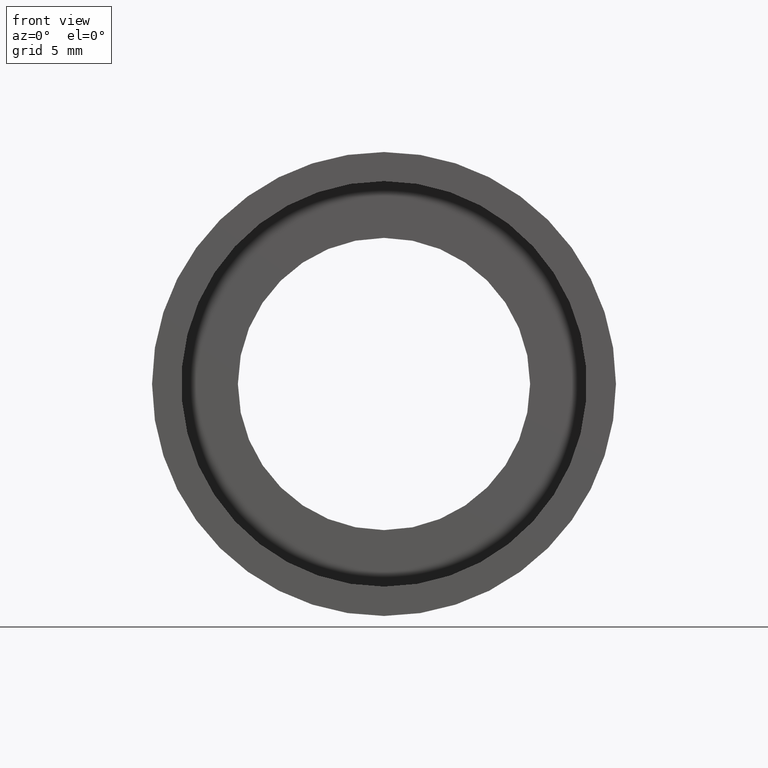
[diagram: clean part render]
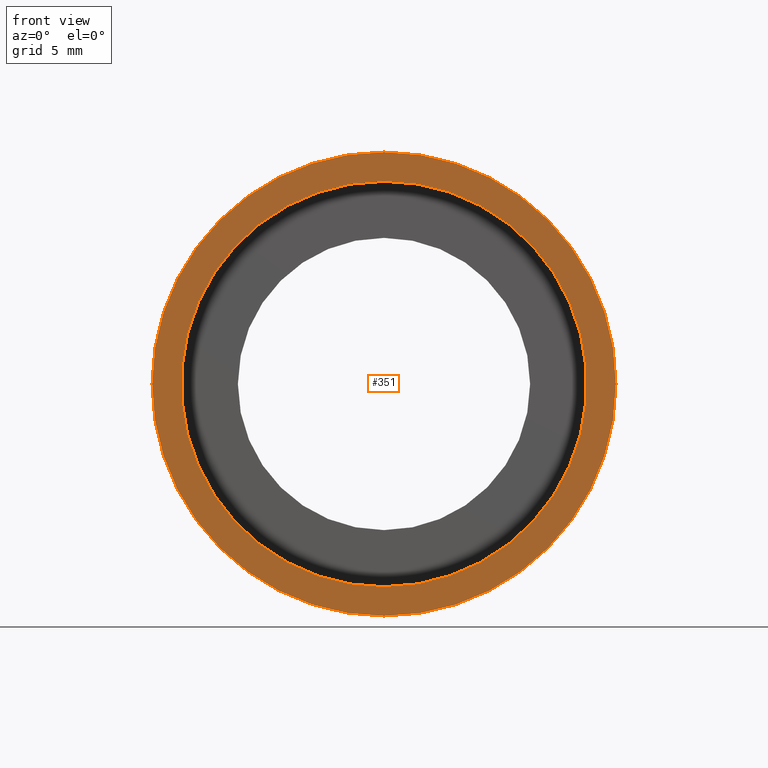
[diagram: same view with one face highlighted and labeled with its STEP entity id]
A machine part, front view. The second image highlights one B-rep face of the part: STEP entity #351.
In plain terms, the highlighted planar face has unit normal (-0, 1, 0).
Its self-contained STEP definition (entity closure, byte-faithful):
#21 = VERTEX_POINT ( 'NONE', #212 ) ;
#23 = DIRECTION ( 'NONE',  ( -0.0000000000000000000, 1.000000000000000000, -0.0000000000000000000 ) ) ;
#72 = CARTESIAN_POINT ( 'NONE',  ( 0.0000000000000000000, -2.775557561562891400E-014, 0.0000000000000000000 ) ) ;
#105 = AXIS2_PLACEMENT_3D ( 'NONE', #518, #140, #374 ) ;
#125 = CARTESIAN_POINT ( 'NONE',  ( 0.0000000000000000000, -2.775557561562891400E-014, 0.0000000000000000000 ) ) ;
#136 = VERTEX_POINT ( 'NONE', #612 ) ;
#140 = DIRECTION ( 'NONE',  ( -0.0000000000000000000, 1.000000000000000000, -0.0000000000000000000 ) ) ;
#149 = DIRECTION ( 'NONE',  ( 0.0000000000000000000, 0.0000000000000000000, 1.000000000000000000 ) ) ;
#159 = VERTEX_POINT ( 'NONE', #370 ) ;
#167 = AXIS2_PLACEMENT_3D ( 'NONE', #262, #174, #512 ) ;
#174 = DIRECTION ( 'NONE',  ( -0.0000000000000000000, 1.000000000000000000, 0.0000000000000000000 ) ) ;
#196 = ORIENTED_EDGE ( 'NONE', *, *, #440, .F. ) ;
#202 = EDGE_CURVE ( 'NONE', #620, #136, #245, .T. ) ;
#207 = EDGE_CURVE ( 'NONE', #21, #159, #272, .T. ) ;
#212 = CARTESIAN_POINT ( 'NONE',  ( 1.555301434917141200E-015, -2.775557561562891400E-014, -12.70000000000001900 ) ) ;
#214 = CARTESIAN_POINT ( 'NONE',  ( 0.0000000000000000000, -2.775557561562891400E-014, 0.0000000000000000000 ) ) ;
#237 = CIRCLE ( 'NONE', #523, 11.10000000000002300 ) ;
#245 = CIRCLE ( 'NONE', #528, 11.10000000000002300 ) ;
#262 = CARTESIAN_POINT ( 'NONE',  ( 11.10000000000002300, -1.590039098016662300E-014, 0.0000000000000000000 ) ) ;
#272 = CIRCLE ( 'NONE', #383, 12.70000000000001900 ) ;
#290 = CIRCLE ( 'NONE', #105, 12.70000000000001900 ) ;
#299 = DIRECTION ( 'NONE',  ( 0.0000000000000000000, 0.0000000000000000000, 1.000000000000000000 ) ) ;
#306 = ORIENTED_EDGE ( 'NONE', *, *, #343, .T. ) ;
#343 = EDGE_CURVE ( 'NONE', #136, #620, #237, .T. ) ;
#351 = ADVANCED_FACE ( 'NONE', ( #427, #380 ), #573, .F. ) ;
#370 = CARTESIAN_POINT ( 'NONE',  ( 0.0000000000000000000, -2.775557561562891400E-014, 12.70000000000001900 ) ) ;
#374 = DIRECTION ( 'NONE',  ( 0.0000000000000000000, 0.0000000000000000000, 1.000000000000000000 ) ) ;
#380 = FACE_BOUND ( 'NONE', #438, .T. ) ;
#383 = AXIS2_PLACEMENT_3D ( 'NONE', #72, #403, #547 ) ;
#403 = DIRECTION ( 'NONE',  ( -0.0000000000000000000, 1.000000000000000000, -0.0000000000000000000 ) ) ;
#427 = FACE_OUTER_BOUND ( 'NONE', #489, .T. ) ;
#438 = EDGE_LOOP ( 'NONE', ( #306, #487 ) ) ;
#440 = EDGE_CURVE ( 'NONE', #159, #21, #290, .T. ) ;
#460 = CARTESIAN_POINT ( 'NONE',  ( 1.359357947053564900E-015, -2.775557561562891400E-014, -11.10000000000002300 ) ) ;
#462 = DIRECTION ( 'NONE',  ( -0.0000000000000000000, 1.000000000000000000, -0.0000000000000000000 ) ) ;
#477 = ORIENTED_EDGE ( 'NONE', *, *, #207, .F. ) ;
#487 = ORIENTED_EDGE ( 'NONE', *, *, #202, .T. ) ;
#489 = EDGE_LOOP ( 'NONE', ( #196, #477 ) ) ;
#512 = DIRECTION ( 'NONE',  ( 0.0000000000000000000, 0.0000000000000000000, 1.000000000000000000 ) ) ;
#518 = CARTESIAN_POINT ( 'NONE',  ( 0.0000000000000000000, -2.775557561562891400E-014, 0.0000000000000000000 ) ) ;
#523 = AXIS2_PLACEMENT_3D ( 'NONE', #125, #462, #149 ) ;
#528 = AXIS2_PLACEMENT_3D ( 'NONE', #214, #23, #299 ) ;
#547 = DIRECTION ( 'NONE',  ( 0.0000000000000000000, 0.0000000000000000000, 1.000000000000000000 ) ) ;
#573 = PLANE ( 'NONE',  #167 ) ;
#612 = CARTESIAN_POINT ( 'NONE',  ( 0.0000000000000000000, -2.775557561562891400E-014, 11.10000000000002300 ) ) ;
#620 = VERTEX_POINT ( 'NONE', #460 ) ;